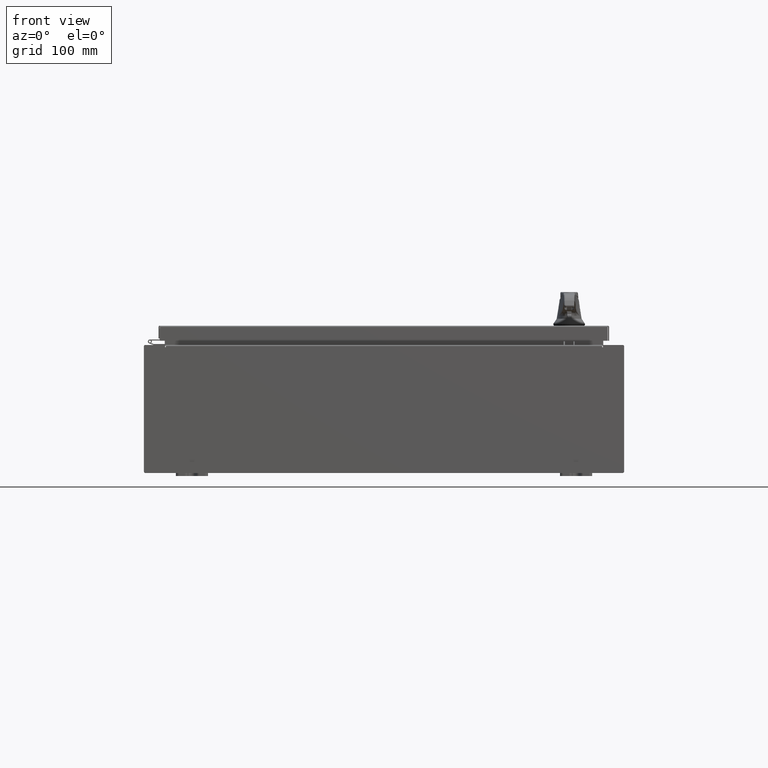
[diagram: clean part render]
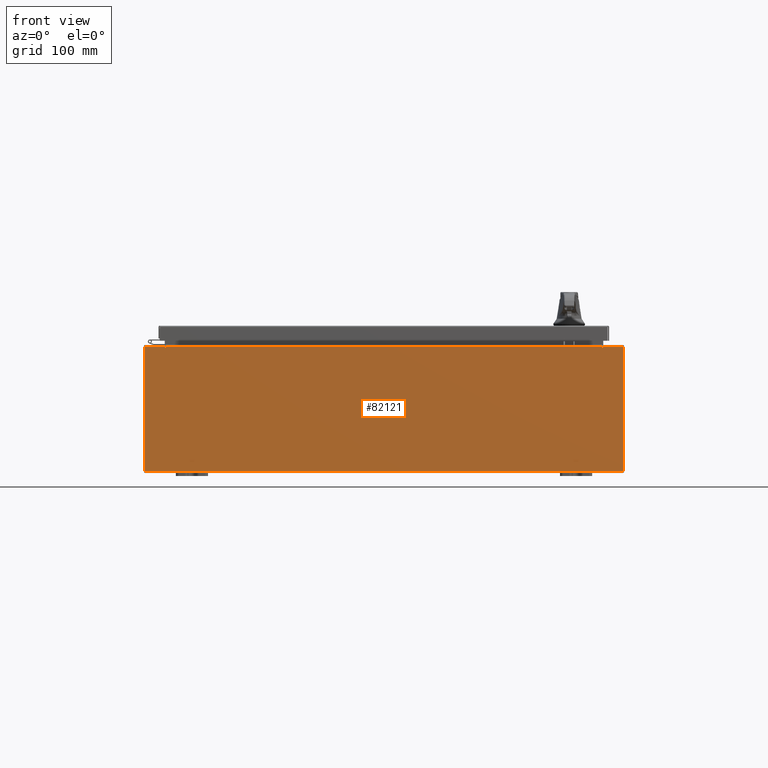
[diagram: same view with one face highlighted and labeled with its STEP entity id]
A machine part, front view. The second image highlights one B-rep face of the part: STEP entity #82121.
In plain terms, the highlighted planar face has unit normal (-0, 1, -0).
Its self-contained STEP definition (entity closure, byte-faithful):
#309 = LINE ( 'NONE', #32468, #18992 ) ;
#421 = EDGE_LOOP ( 'NONE', ( #105443, #104047, #29071, #84584, #10030, #22565, #77523, #85281, #114913, #85712, #109584, #10075 ) ) ;
#2186 = VECTOR ( 'NONE', #48191, 39.37007874015748100 ) ;
#2275 = CARTESIAN_POINT ( 'NONE',  ( -14.92529999999999800, 0.0000000000000000000, 3.925299999999999600 ) ) ;
#3743 = CARTESIAN_POINT ( 'NONE',  ( -13.63719999999999800, 1.024442997624098700E-016, 3.912299999999999700 ) ) ;
#4016 = EDGE_CURVE ( 'NONE', #24078, #8498, #35370, .T. ) ;
#4148 = VERTEX_POINT ( 'NONE', #17712 ) ;
#6066 = CARTESIAN_POINT ( 'NONE',  ( -13.67454999999999500, -0.0000000000000000000, 0.0000000000000000000 ) ) ;
#6094 = EDGE_CURVE ( 'NONE', #60333, #4148, #65641, .T. ) ;
#8498 = VERTEX_POINT ( 'NONE', #95246 ) ;
#9658 = VERTEX_POINT ( 'NONE', #103379 ) ;
#10030 = ORIENTED_EDGE ( 'NONE', *, *, #4016, .F. ) ;
#10075 = ORIENTED_EDGE ( 'NONE', *, *, #33694, .T. ) ;
#11896 = CARTESIAN_POINT ( 'NONE',  ( -14.92529999999999800, 0.0000000000000000000, 3.925299999999999600 ) ) ;
#14696 = VERTEX_POINT ( 'NONE', #42030 ) ;
#15033 = DIRECTION ( 'NONE',  ( -0.0000000000000000000, 1.000000000000000000, -0.0000000000000000000 ) ) ;
#16337 = LINE ( 'NONE', #11896, #38050 ) ;
#17613 = CARTESIAN_POINT ( 'NONE',  ( -14.92529999999999800, 0.0000000000000000000, 3.925299999999999600 ) ) ;
#17712 = CARTESIAN_POINT ( 'NONE',  ( -13.63719999999999600, -0.0000000000000000000, 3.874949999999999700 ) ) ;
#18918 = CARTESIAN_POINT ( 'NONE',  ( 13.67454999999983300, -0.0000000000000000000, -5.935537951421816200E-013 ) ) ;
#18992 = VECTOR ( 'NONE', #97083, 39.37007874015748100 ) ;
#19760 = FACE_OUTER_BOUND ( 'NONE', #421, .T. ) ;
#19802 = CARTESIAN_POINT ( 'NONE',  ( -13.67454999999999500, 0.0000000000000000000, 3.874949999999999700 ) ) ;
#20296 = VERTEX_POINT ( 'NONE', #33651 ) ;
#21140 = DIRECTION ( 'NONE',  ( 1.000000000000000000, 0.0000000000000000000, 0.0000000000000000000 ) ) ;
#22404 = EDGE_CURVE ( 'NONE', #4148, #89353, #63844, .T. ) ;
#22565 = ORIENTED_EDGE ( 'NONE', *, *, #116479, .F. ) ;
#22804 = DIRECTION ( 'NONE',  ( 0.0000000000000000000, -1.000000000000000000, 0.0000000000000000000 ) ) ;
#24078 = VERTEX_POINT ( 'NONE', #80462 ) ;
#25089 = LINE ( 'NONE', #29604, #43786 ) ;
#25307 = VECTOR ( 'NONE', #45415, 39.37007874015748100 ) ;
#29071 = ORIENTED_EDGE ( 'NONE', *, *, #6094, .F. ) ;
#29604 = CARTESIAN_POINT ( 'NONE',  ( -14.92529999999999800, 0.0000000000000000000, -3.925299999999999600 ) ) ;
#29721 = LINE ( 'NONE', #6066, #51289 ) ;
#31389 = AXIS2_PLACEMENT_3D ( 'NONE', #50184, #22804, #87397 ) ;
#31539 = DIRECTION ( 'NONE',  ( 1.000000000000000000, 0.0000000000000000000, 0.0000000000000000000 ) ) ;
#31939 = EDGE_CURVE ( 'NONE', #69309, #20296, #25089, .T. ) ;
#32468 = CARTESIAN_POINT ( 'NONE',  ( 14.92530000000000200, 0.0000000000000000000, 3.925299999999999600 ) ) ;
#33651 = CARTESIAN_POINT ( 'NONE',  ( -14.92529999999999800, 0.0000000000000000000, -3.925299999999999600 ) ) ;
#33694 = EDGE_CURVE ( 'NONE', #9658, #85973, #99027, .T. ) ;
#35370 = LINE ( 'NONE', #98086, #81614 ) ;
#38050 = VECTOR ( 'NONE', #21140, 39.37007874015748100 ) ;
#42030 = CARTESIAN_POINT ( 'NONE',  ( 13.67455000000000200, 0.0000000000000000000, 3.874949999999999700 ) ) ;
#43786 = VECTOR ( 'NONE', #75597, 39.37007874015748100 ) ;
#43917 = VECTOR ( 'NONE', #62960, 39.37007874015748100 ) ;
#45415 = DIRECTION ( 'NONE',  ( 1.000000000000000000, 0.0000000000000000000, 0.0000000000000000000 ) ) ;
#48191 = DIRECTION ( 'NONE',  ( -0.0000000000000000000, -0.0000000000000000000, 1.000000000000000000 ) ) ;
#49427 = VECTOR ( 'NONE', #31539, 39.37007874015748100 ) ;
#49701 = AXIS2_PLACEMENT_3D ( 'NONE', #105934, #50572, #115257 ) ;
#50184 = CARTESIAN_POINT ( 'NONE',  ( 0.0000000000000000000, 0.0000000000000000000, 0.0000000000000000000 ) ) ;
#50572 = DIRECTION ( 'NONE',  ( -0.0000000000000000000, 1.000000000000000000, -0.0000000000000000000 ) ) ;
#51289 = VECTOR ( 'NONE', #89199, 39.37007874015748100 ) ;
#51361 = CARTESIAN_POINT ( 'NONE',  ( 14.92530000000000200, 0.0000000000000000000, 3.925299999999999600 ) ) ;
#53694 = CARTESIAN_POINT ( 'NONE',  ( -13.63719999999999600, -0.0000000000000000000, 0.0000000000000000000 ) ) ;
#60333 = VERTEX_POINT ( 'NONE', #61226 ) ;
#61062 = CARTESIAN_POINT ( 'NONE',  ( 13.67455000000000400, 0.0000000000000000000, 3.925299999999999600 ) ) ;
#61226 = CARTESIAN_POINT ( 'NONE',  ( -13.63719999999999600, 1.024442997624098700E-016, 3.912299999999999700 ) ) ;
#62960 = DIRECTION ( 'NONE',  ( 0.0000000000000000000, 0.0000000000000000000, -1.000000000000000000 ) ) ;
#63844 = CIRCLE ( 'NONE', #49701, 0.01867499999999949400 ) ;
#63923 = EDGE_CURVE ( 'NONE', #20296, #9658, #75789, .T. ) ;
#65641 = LINE ( 'NONE', #53694, #43917 ) ;
#68769 = PLANE ( 'NONE',  #31389 ) ;
#69309 = VERTEX_POINT ( 'NONE', #89386 ) ;
#70331 = CARTESIAN_POINT ( 'NONE',  ( 13.65587500000000200, 0.0000000000000000000, 3.874949999999999700 ) ) ;
#72043 = EDGE_CURVE ( 'NONE', #60333, #8498, #74044, .T. ) ;
#73493 = EDGE_CURVE ( 'NONE', #101690, #14696, #94129, .T. ) ;
#74044 = LINE ( 'NONE', #3743, #49427 ) ;
#75597 = DIRECTION ( 'NONE',  ( -1.000000000000000000, -0.0000000000000000000, -0.0000000000000000000 ) ) ;
#75789 = LINE ( 'NONE', #2275, #2186 ) ;
#77523 = ORIENTED_EDGE ( 'NONE', *, *, #73493, .F. ) ;
#79614 = DIRECTION ( 'NONE',  ( 0.0000000000000000000, 0.0000000000000000000, -1.000000000000000000 ) ) ;
#80462 = CARTESIAN_POINT ( 'NONE',  ( 13.63720000000000400, 0.0000000000000000000, 3.874949999999999700 ) ) ;
#81614 = VECTOR ( 'NONE', #107746, 39.37007874015748100 ) ;
#82121 = ADVANCED_FACE ( 'NONE', ( #19760 ), #68769, .F. ) ;
#83076 = EDGE_CURVE ( 'NONE', #89353, #85973, #29721, .T. ) ;
#84584 = ORIENTED_EDGE ( 'NONE', *, *, #72043, .T. ) ;
#85281 = ORIENTED_EDGE ( 'NONE', *, *, #111065, .T. ) ;
#85712 = ORIENTED_EDGE ( 'NONE', *, *, #31939, .T. ) ;
#85973 = VERTEX_POINT ( 'NONE', #110621 ) ;
#87397 = DIRECTION ( 'NONE',  ( 0.0000000000000000000, -0.0000000000000000000, -1.000000000000000000 ) ) ;
#89199 = DIRECTION ( 'NONE',  ( 0.0000000000000000000, 0.0000000000000000000, 1.000000000000000000 ) ) ;
#89353 = VERTEX_POINT ( 'NONE', #19802 ) ;
#89386 = CARTESIAN_POINT ( 'NONE',  ( 14.92530000000000200, 0.0000000000000000000, -3.925299999999999600 ) ) ;
#94129 = LINE ( 'NONE', #18918, #118696 ) ;
#95246 = CARTESIAN_POINT ( 'NONE',  ( 13.63720000000000400, 0.0000000000000000000, 3.912299999999999700 ) ) ;
#97083 = DIRECTION ( 'NONE',  ( 0.0000000000000000000, 0.0000000000000000000, -1.000000000000000000 ) ) ;
#98086 = CARTESIAN_POINT ( 'NONE',  ( 13.63720000000000400, 0.0000000000000000000, 0.0000000000000000000 ) ) ;
#98764 = VERTEX_POINT ( 'NONE', #51361 ) ;
#99027 = LINE ( 'NONE', #17613, #25307 ) ;
#100579 = EDGE_CURVE ( 'NONE', #98764, #69309, #309, .T. ) ;
#101690 = VERTEX_POINT ( 'NONE', #61062 ) ;
#102130 = DIRECTION ( 'NONE',  ( -4.340572780400004900E-014, 0.0000000000000000000, -1.000000000000000000 ) ) ;
#103379 = CARTESIAN_POINT ( 'NONE',  ( -14.92529999999999800, 0.0000000000000000000, 3.925299999999999600 ) ) ;
#104047 = ORIENTED_EDGE ( 'NONE', *, *, #22404, .F. ) ;
#105443 = ORIENTED_EDGE ( 'NONE', *, *, #83076, .F. ) ;
#105934 = CARTESIAN_POINT ( 'NONE',  ( -13.65587499999999600, 0.0000000000000000000, 3.874949999999999700 ) ) ;
#107746 = DIRECTION ( 'NONE',  ( 0.0000000000000000000, 0.0000000000000000000, 1.000000000000000000 ) ) ;
#109584 = ORIENTED_EDGE ( 'NONE', *, *, #63923, .T. ) ;
#110621 = CARTESIAN_POINT ( 'NONE',  ( -13.67454999999999500, 0.0000000000000000000, 3.925299999999999600 ) ) ;
#111065 = EDGE_CURVE ( 'NONE', #101690, #98764, #16337, .T. ) ;
#112649 = CIRCLE ( 'NONE', #118102, 0.01867499999999949400 ) ;
#114913 = ORIENTED_EDGE ( 'NONE', *, *, #100579, .T. ) ;
#115257 = DIRECTION ( 'NONE',  ( 0.0000000000000000000, 0.0000000000000000000, -1.000000000000000000 ) ) ;
#116479 = EDGE_CURVE ( 'NONE', #14696, #24078, #112649, .T. ) ;
#118102 = AXIS2_PLACEMENT_3D ( 'NONE', #70331, #15033, #79614 ) ;
#118696 = VECTOR ( 'NONE', #102130, 39.37007874015748100 ) ;